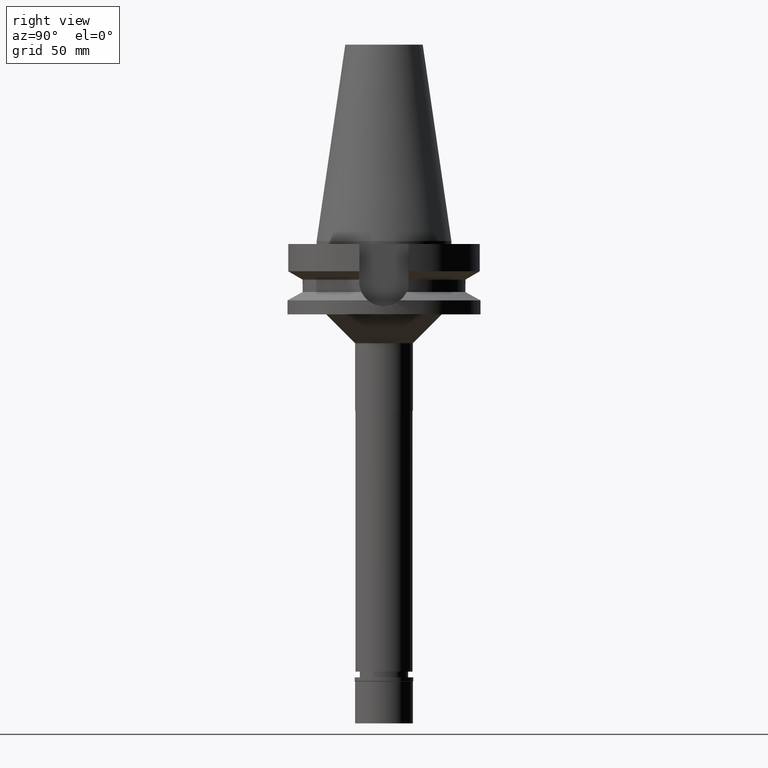
[diagram: clean part render]
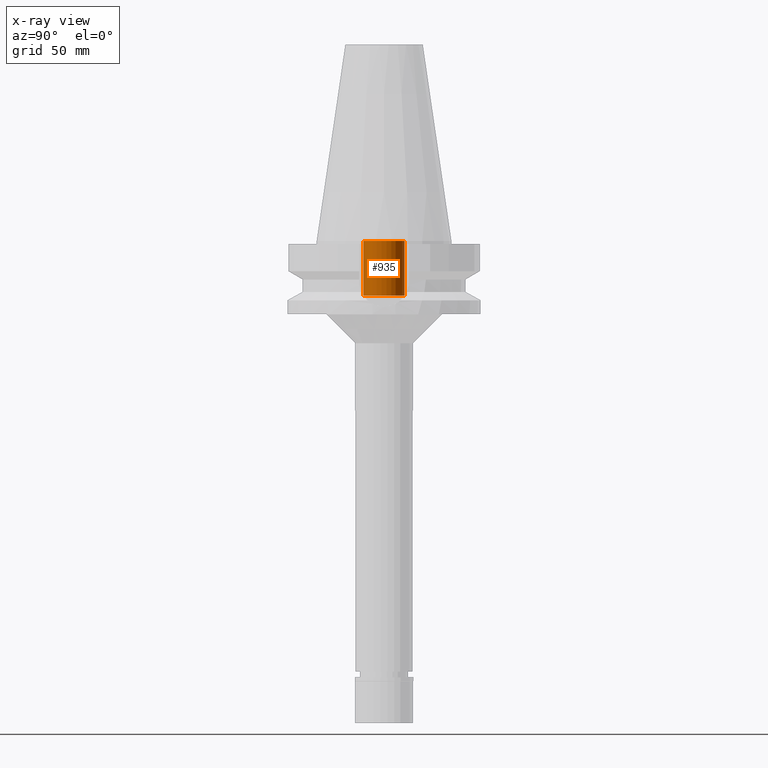
[diagram: x-ray — body ghosted, one internal face saturated and labeled with its STEP entity id]
A machine part, right view, then the same camera in x-ray: the body is ghosted and one INTERNAL B-rep face — a face not visible from any outside direction — is saturated and labeled: STEP entity #935.
In plain terms, the highlighted cylindrical surface (edge-blend (fillet) strip) has radius 10.6 mm, axis along (0, 0, -1).
Its self-contained STEP definition (entity closure, byte-faithful):
#33 = VECTOR ( 'NONE', #738, 1000.000000000000000 ) ;
#60 = CARTESIAN_POINT ( 'NONE',  ( 0.0000000000000000000, 10.59999999999999964, -28.19999999999999929 ) ) ;
#61 = ORIENTED_EDGE ( 'NONE', *, *, #320, .T. ) ;
#183 = CARTESIAN_POINT ( 'NONE',  ( 0.0000000000000000000, -10.59999999999999964, -28.19999999999999929 ) ) ;
#249 = ORIENTED_EDGE ( 'NONE', *, *, #1418, .T. ) ;
#320 = EDGE_CURVE ( 'NONE', #1788, #1247, #2495, .T. ) ;
#321 = LINE ( 'NONE', #60, #823 ) ;
#335 = AXIS2_PLACEMENT_3D ( 'NONE', #2228, #2471, #1022 ) ;
#339 = DIRECTION ( 'NONE',  ( 0.0000000000000000000, 0.0000000000000000000, 1.000000000000000000 ) ) ;
#610 = EDGE_LOOP ( 'NONE', ( #2071, #249, #61, #625 ) ) ;
#625 = ORIENTED_EDGE ( 'NONE', *, *, #1528, .F. ) ;
#663 = CIRCLE ( 'NONE', #2506, 10.59999999999999964 ) ;
#701 = CYLINDRICAL_SURFACE ( 'NONE', #2800, 10.59999999999999964 ) ;
#738 = DIRECTION ( 'NONE',  ( 0.0000000000000000000, 0.0000000000000000000, 1.000000000000000000 ) ) ;
#823 = VECTOR ( 'NONE', #339, 1000.000000000000000 ) ;
#935 = ADVANCED_FACE ( 'NONE', ( #2755 ), #701, .F. ) ;
#985 = DIRECTION ( 'NONE',  ( 0.0000000000000000000, 0.0000000000000000000, -1.000000000000000000 ) ) ;
#1022 = DIRECTION ( 'NONE',  ( 0.0000000000000000000, -1.000000000000000000, 0.0000000000000000000 ) ) ;
#1173 = CARTESIAN_POINT ( 'NONE',  ( 0.0000000000000000000, 10.59999999999999964, -28.19999999999999929 ) ) ;
#1208 = CARTESIAN_POINT ( 'NONE',  ( 0.0000000000000000000, 10.59999999999999964, -1.421085471519999843E-14 ) ) ;
#1222 = CARTESIAN_POINT ( 'NONE',  ( 0.0000000000000000000, -10.59999999999999964, -28.19999999999999929 ) ) ;
#1247 = VERTEX_POINT ( 'NONE', #1208 ) ;
#1312 = CARTESIAN_POINT ( 'NONE',  ( 0.0000000000000000000, 2.680629378654000054E-14, -28.19999999999999929 ) ) ;
#1418 = EDGE_CURVE ( 'NONE', #2133, #1788, #2242, .T. ) ;
#1504 = DIRECTION ( 'NONE',  ( 0.0000000000000000000, -1.000000000000000000, 0.0000000000000000000 ) ) ;
#1528 = EDGE_CURVE ( 'NONE', #2525, #1247, #321, .T. ) ;
#1788 = VERTEX_POINT ( 'NONE', #3179 ) ;
#1799 = DIRECTION ( 'NONE',  ( 0.0000000000000000000, 1.000000000000000000, 0.0000000000000000000 ) ) ;
#2071 = ORIENTED_EDGE ( 'NONE', *, *, #2274, .T. ) ;
#2133 = VERTEX_POINT ( 'NONE', #183 ) ;
#2228 = CARTESIAN_POINT ( 'NONE',  ( 0.0000000000000000000, 2.680629378654000054E-14, -2.842170943039999687E-14 ) ) ;
#2242 = LINE ( 'NONE', #1222, #33 ) ;
#2274 = EDGE_CURVE ( 'NONE', #2525, #2133, #663, .T. ) ;
#2450 = CARTESIAN_POINT ( 'NONE',  ( 0.0000000000000000000, 2.680629378654000054E-14, 118.8900000000000006 ) ) ;
#2471 = DIRECTION ( 'NONE',  ( 0.0000000000000000000, 0.0000000000000000000, 1.000000000000000000 ) ) ;
#2495 = CIRCLE ( 'NONE', #335, 10.59999999999999964 ) ;
#2506 = AXIS2_PLACEMENT_3D ( 'NONE', #1312, #3059, #1799 ) ;
#2525 = VERTEX_POINT ( 'NONE', #1173 ) ;
#2755 = FACE_OUTER_BOUND ( 'NONE', #610, .T. ) ;
#2800 = AXIS2_PLACEMENT_3D ( 'NONE', #2450, #985, #1504 ) ;
#3059 = DIRECTION ( 'NONE',  ( 0.0000000000000000000, 0.0000000000000000000, -1.000000000000000000 ) ) ;
#3179 = CARTESIAN_POINT ( 'NONE',  ( 0.0000000000000000000, -10.59999999999999964, -1.421085471519999843E-14 ) ) ;